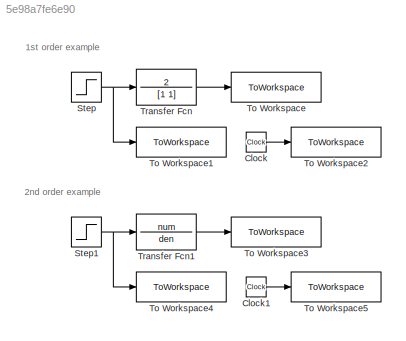
MODEL slx_5e98a7fe6e90
KIND model
CONFIG AbsTol = auto
CONFIG EnableMultiTasking = off
CONFIG FixedStep = auto
CONFIG MaxStep = auto
CONFIG MinStep = auto
CONFIG RelTol = 1e-3
CONFIG SampleTimeConstraint = Unconstrained
CONFIG SolverName = VariableStepAuto
CONFIG StartTime = 0.0
CONFIG StopTime = 10.0
BLOCK [Clock] Clock
BLOCK [Clock] Clock1
BLOCK [Step] Step
  SampleTime = tSample
  Time = 0
BLOCK [Step] Step1
  SampleTime = tSample
  Time = 0
BLOCK [ToWorkspace] To Workspace
  FixptAsFi = on
  MaxDataPoints = inf
  SampleTime = tSample
  VariableName = output
BLOCK [ToWorkspace] To Workspace1
  FixptAsFi = on
  MaxDataPoints = inf
  SampleTime = tSample
  VariableName = input
BLOCK [ToWorkspace] To Workspace2
  FixptAsFi = on
  MaxDataPoints = inf
  SampleTime = tSample
  VariableName = time
BLOCK [ToWorkspace] To Workspace3
  FixptAsFi = on
  MaxDataPoints = inf
  SampleTime = tSample
  VariableName = output1
BLOCK [ToWorkspace] To Workspace4
  FixptAsFi = on
  MaxDataPoints = inf
  SampleTime = tSample
  VariableName = input1
BLOCK [ToWorkspace] To Workspace5
  FixptAsFi = on
  MaxDataPoints = inf
  SampleTime = tSample
  VariableName = time1
BLOCK [TransferFcn] Transfer Fcn
  Denominator = [1 1]
  Numerator = 2
BLOCK [TransferFcn] Transfer Fcn1
  Denominator = den
  Numerator = num
ANNOTATION (root): 1st order example
ANNOTATION (root): 2nd order example
LINE Clock1:1 -> To Workspace5:1
LINE Clock:1 -> To Workspace2:1
NET Step1:1 -> To Workspace4:1, Transfer Fcn1:1
NET Step:1 -> To Workspace1:1, Transfer Fcn:1
LINE Transfer Fcn1:1 -> To Workspace3:1
LINE Transfer Fcn:1 -> To Workspace:1
note: NET lines group one-source signal fan-out (src -> all destinations, sorted); 1:1 wires keep LINE
